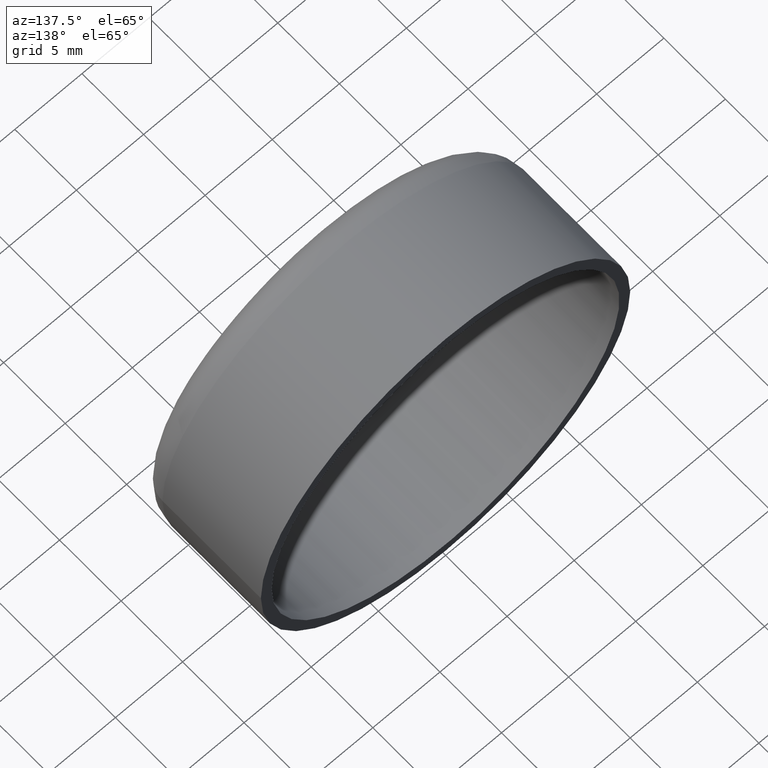
[diagram: clean part render]
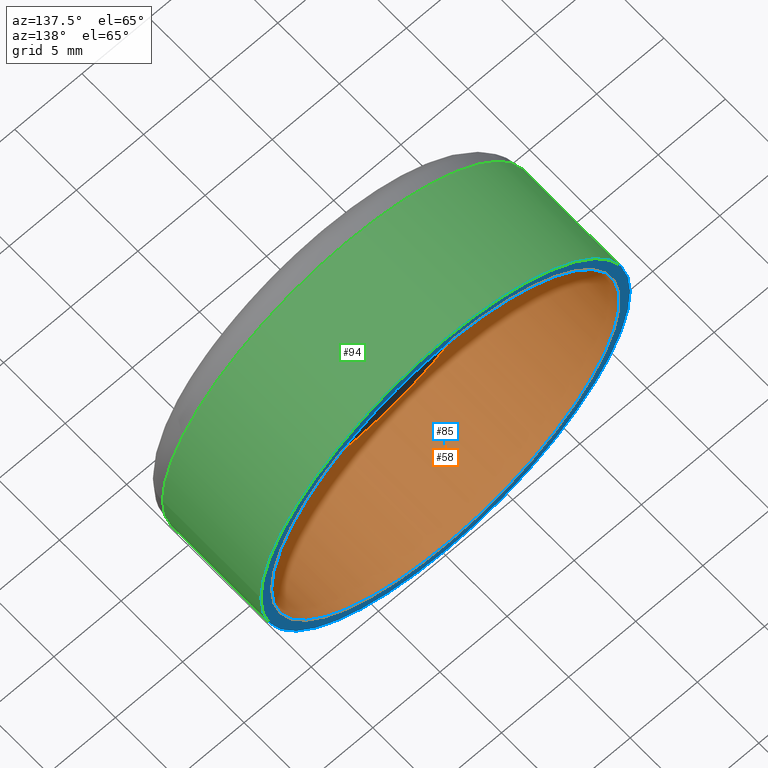
[diagram: same view with three faces highlighted in distinct colors, each labeled with its STEP entity id]
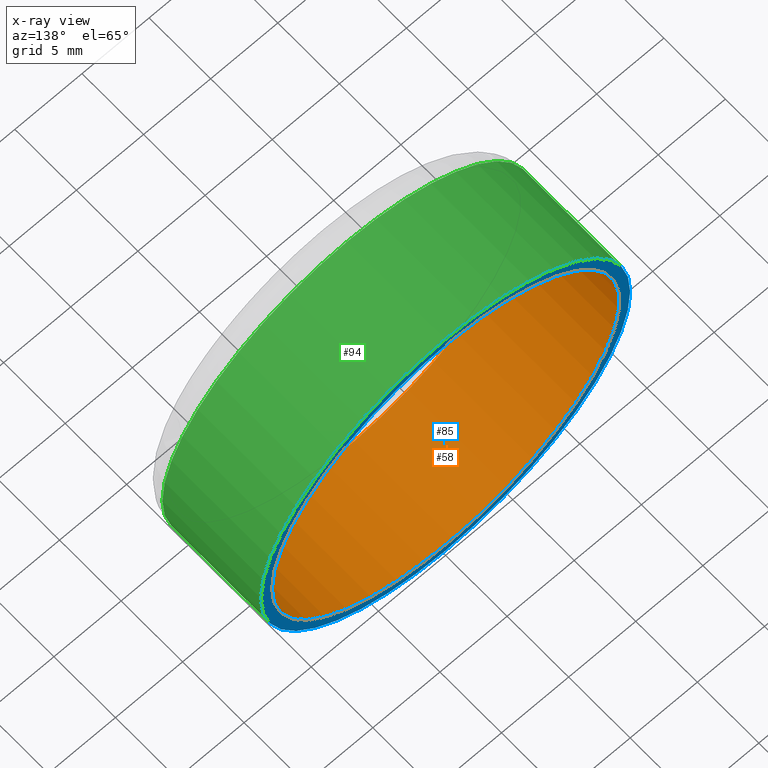
[diagram: x-ray of the same camera — body ghosted, the three highlighted faces saturated]
A machine part, auxiliary view with three faces highlighted in distinct colors.
The next image is the same camera in x-ray (body ghosted, the three faces saturated) — at least one of them is partly hidden behind the body in this view.
Their STEP definitions:

[orange] entity #58 — the highlighted cylindrical surface (bore or boss wall) has radius 12.95 mm, axis along (0, 1, 0).
#58=ADVANCED_FACE('',(#121,#123),#125,.F.);
#121=FACE_OUTER_BOUND('',#122,.T.);
#122=EDGE_LOOP('',(#180));
#123=FACE_OUTER_BOUND('',#124,.T.);
#124=EDGE_LOOP('',(#181));
#125=CYLINDRICAL_SURFACE('',#126,12.95);
#126=AXIS2_PLACEMENT_3D('',#127,#128,#129);
#127=CARTESIAN_POINT('',(0.,0.,0.));
#128=DIRECTION('',(0.,1.,0.));
#129=DIRECTION('',(1.,0.,0.));
#180=ORIENTED_EDGE('',*,*,#192,.T.);
#181=ORIENTED_EDGE('',*,*,#193,.F.);
#192=EDGE_CURVE('',#198,#198,#199,.T.);
#193=EDGE_CURVE('',#200,#200,#201,.T.);
#198=VERTEX_POINT('',#210);
#199=CIRCLE('',#211,12.95);
#200=VERTEX_POINT('',#215);
#201=CIRCLE('',#216,12.95);
#210=CARTESIAN_POINT('',(12.95,10.,3.17183520979164E-015));
#211=AXIS2_PLACEMENT_3D('',#212,#213,#214);
#212=CARTESIAN_POINT('',(0.,10.,0.));
#213=DIRECTION('',(-0.,1.,0.));
#214=DIRECTION('',(1.,0.,0.));
#215=CARTESIAN_POINT('',(12.95,2.,0.));
#216=AXIS2_PLACEMENT_3D('',#217,#218,#219);
#217=CARTESIAN_POINT('',(0.,2.,0.));
#218=DIRECTION('',(-0.,1.,0.));
#219=DIRECTION('',(1.,0.,0.));

[blue] entity #85 — the highlighted planar face has unit normal (-0, 1, 0).
#85=ADVANCED_FACE('',(#146,#148),#150,.T.);
#146=FACE_BOUND('',#147,.T.);
#147=EDGE_LOOP('',(#185));
#148=FACE_BOUND('',#149,.T.);
#149=EDGE_LOOP('',(#186));
#150=PLANE('',#151);
#151=AXIS2_PLACEMENT_3D('',#152,#153,#154);
#152=CARTESIAN_POINT('',(0.,10.,0.));
#153=DIRECTION('',(-0.,1.,0.));
#154=DIRECTION('',(1.,0.,0.));
#185=ORIENTED_EDGE('',*,*,#195,.T.);
#186=ORIENTED_EDGE('',*,*,#192,.F.);
#192=EDGE_CURVE('',#198,#198,#199,.T.);
#195=EDGE_CURVE('',#204,#204,#205,.T.);
#198=VERTEX_POINT('',#210);
#199=CIRCLE('',#211,12.95);
#204=VERTEX_POINT('',#225);
#205=CIRCLE('',#226,13.75);
#210=CARTESIAN_POINT('',(12.95,10.,3.17183520979164E-015));
#211=AXIS2_PLACEMENT_3D('',#212,#213,#214);
#212=CARTESIAN_POINT('',(0.,10.,0.));
#213=DIRECTION('',(-0.,1.,0.));
#214=DIRECTION('',(1.,0.,0.));
#225=CARTESIAN_POINT('',(13.75,10.,0.));
#226=AXIS2_PLACEMENT_3D('',#227,#228,#229);
#227=CARTESIAN_POINT('',(0.,10.,0.));
#228=DIRECTION('',(-0.,1.,0.));
#229=DIRECTION('',(1.,0.,0.));

[green] entity #94 — the highlighted cylindrical surface (bore or boss wall) has radius 13.75 mm, axis along (0, 1, 0).
#94=ADVANCED_FACE('',(#155,#157),#159,.T.);
#155=FACE_OUTER_BOUND('',#156,.T.);
#156=EDGE_LOOP('',(#187));
#157=FACE_OUTER_BOUND('',#158,.T.);
#158=EDGE_LOOP('',(#188));
#159=CYLINDRICAL_SURFACE('',#160,13.75);
#160=AXIS2_PLACEMENT_3D('',#161,#162,#163);
#161=CARTESIAN_POINT('',(0.,0.,0.));
#162=DIRECTION('',(0.,1.,0.));
#163=DIRECTION('',(1.,0.,0.));
#187=ORIENTED_EDGE('',*,*,#195,.F.);
#188=ORIENTED_EDGE('',*,*,#196,.T.);
#195=EDGE_CURVE('',#204,#204,#205,.T.);
#196=EDGE_CURVE('',#206,#206,#207,.T.);
#204=VERTEX_POINT('',#225);
#205=CIRCLE('',#226,13.75);
#206=VERTEX_POINT('',#230);
#207=CIRCLE('',#231,13.75);
#225=CARTESIAN_POINT('',(13.75,10.,0.));
#226=AXIS2_PLACEMENT_3D('',#227,#228,#229);
#227=CARTESIAN_POINT('',(0.,10.,0.));
#228=DIRECTION('',(-0.,1.,0.));
#229=DIRECTION('',(1.,0.,0.));
#230=CARTESIAN_POINT('',(13.75,2.,1.68388934882761E-015));
#231=AXIS2_PLACEMENT_3D('',#232,#233,#234);
#232=CARTESIAN_POINT('',(0.,2.,0.));
#233=DIRECTION('',(-0.,1.,0.));
#234=DIRECTION('',(1.,0.,0.));